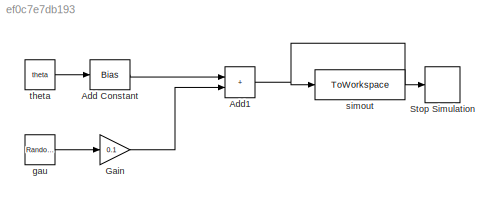
MODEL slx_ef0c7e7db193
KIND model
CONFIG AbsTol = auto
CONFIG EnableMultiTasking = off
CONFIG FixedStep = auto
CONFIG MaxStep = auto
CONFIG MinStep = auto
CONFIG RelTol = 1e-3
CONFIG SampleTimeConstraint = Unconstrained
CONFIG SolverName = VariableStepAuto
CONFIG StartTime = 0.0
CONFIG StopTime = 0.1
BLOCK [Bias] Add Constant
  Bias = 1
  SaturateOnIntegerOverflow = off
BLOCK [Sum] Add1
  IconShape = rectangular
BLOCK [Gain] Gain
  Gain = 0.1
BLOCK [Stop] Stop Simulation
BLOCK [RandomNumber] gau
  Mean = means
  SampleTime = 0.1
  Seed = 10
  Variance = var
BLOCK [ToWorkspace] simout
  FixptAsFi = on
  MaxDataPoints = inf
  SampleTime = -1
  VariableName = simout
BLOCK [Constant] theta
  Value = theta
LINE Add Constant:1 -> Add1:1
NET Add1:1 -> Stop Simulation:1, simout:1
LINE Gain:1 -> Add1:2
LINE gau:1 -> Gain:1
LINE theta:1 -> Add Constant:1
note: NET lines group one-source signal fan-out (src -> all destinations, sorted); 1:1 wires keep LINE
